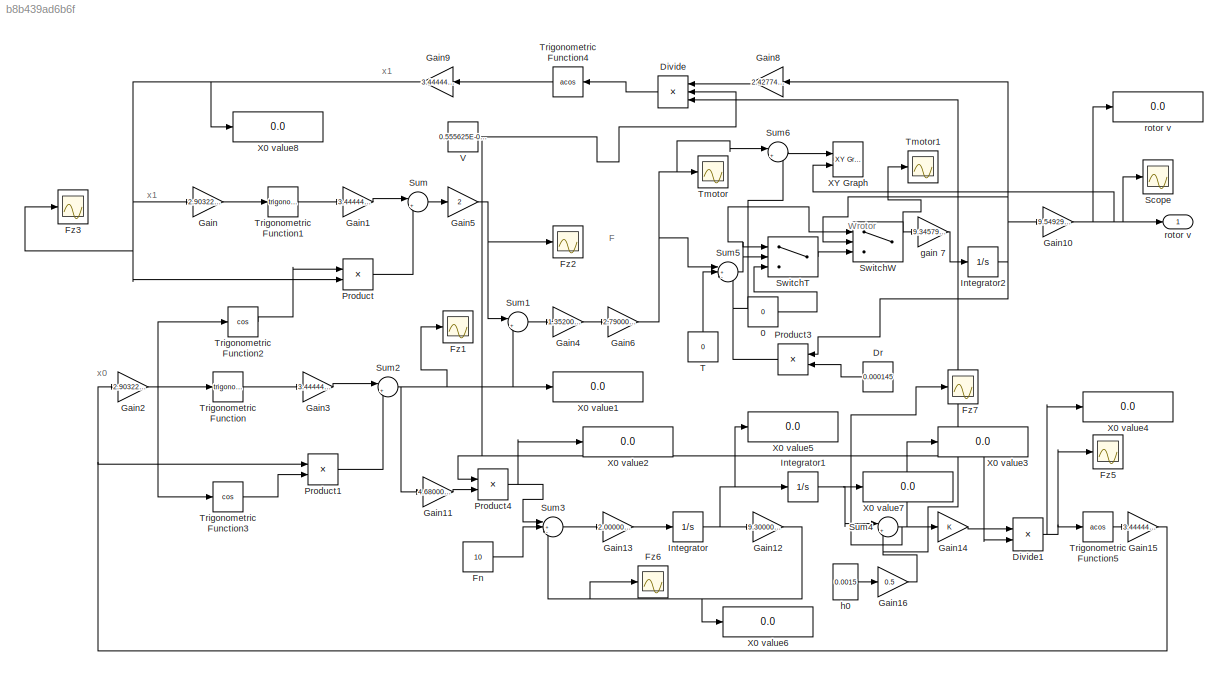
MODEL slx_b8b439ad6b6f
KIND model
BLOCK [Display]  X0 value1
  Decimation = 1
  Lockdown = off
  Ports = [1]
BLOCK [Display]  X0 value2
  Decimation = 1
  Lockdown = off
  Ports = [1]
BLOCK [Display]  X0 value3
  Decimation = 1
  Lockdown = off
  Ports = [1]
BLOCK [Display]  X0 value4
  Decimation = 1
  Lockdown = off
  Ports = [1]
BLOCK [Display]  X0 value5
  Decimation = 1
  Lockdown = off
  Ports = [1]
BLOCK [Display]  X0 value6
  Decimation = 1
  Lockdown = off
  Ports = [1]
BLOCK [Display]  X0 value7
  Decimation = 1
  Lockdown = off
  Ports = [1]
BLOCK [Display]  X0 value8
  Decimation = 1
  Lockdown = off
  Ports = [1]
BLOCK [Constant] 0
  Value = 0
BLOCK [Product] Divide
  InputSameDT = off
  Inputs = *//
  OutDataTypeStr = Inherit: Inherit via internal rule
  Ports = [3, 1]
  RndMeth = Floor
  SaturateOnIntegerOverflow = off
BLOCK [Product] Divide1
  InputSameDT = off
  Inputs = */
  OutDataTypeStr = Inherit: Inherit via internal rule
  Ports = [2, 1]
  RndMeth = Floor
  SaturateOnIntegerOverflow = off
BLOCK [Constant] Dr
  Value = 0.000145
BLOCK [Constant] Fn
  Value = 10
BLOCK [Scope] Fz1
  DataFormat = StructureWithTime
  Floating = off
  MaxDataPoints = 50000
  NumInputPorts = 1
  Ports = [1]
  SampleTime = 0
  SaveName = ScopeData5
  ShowLegends = off
  TimeRange = 0.0025
  YMax = 0.00316673
  YMin = 0.00286513
  ZoomMode = xonly
BLOCK [Scope] Fz2
  DataFormat = StructureWithTime
  Floating = off
  MaxDataPoints = 50000
  NumInputPorts = 1
  Ports = [1]
  SampleTime = 0
  SaveName = ScopeData6
  ShowLegends = off
  TimeRange = 0.0025
  YMax = 584.235
  YMin = 528.593
  ZoomMode = xonly
BLOCK [Scope] Fz3
  DataFormat = StructureWithTime
  Floating = off
  MaxDataPoints = 50000
  NumInputPorts = 1
  Ports = [1]
  SampleTime = 0
  SaveName = ScopeData7
  ShowLegends = off
  TimeRange = 0.0025
  YMax = 0.00037921
  YMin = 0.000379204
  ZoomMode = xonly
BLOCK [Scope] Fz5
  DataFormat = StructureWithTime
  Floating = off
  MaxDataPoints = 50000
  NumInputPorts = 1
  Ports = [1]
  SampleTime = 0
  ShowLegends = off
  TimeRange = 0.0025
  YMax = -1359
  YMin = -1361.75
  ZoomMode = xonly
BLOCK [Scope] Fz6
  DataFormat = StructureWithTime
  Floating = off
  MaxDataPoints = 50000
  NumInputPorts = 1
  Ports = [1]
  SampleTime = 0
  SaveName = ScopeData2
  ShowLegends = off
  TimeRange = 0.0025
  YMax = 18.092
  YMin = 16.369
  ZoomMode = yonly
BLOCK [Scope] Fz7
  DataFormat = StructureWithTime
  Floating = off
  MaxDataPoints = 50000
  NumInputPorts = 1
  Ports = [1]
  SampleTime = 0
  SaveName = ScopeData1
  ShowLegends = off
  TimeRange = 0.0025
  YMax = 0.00109956
  YMin = 0.00099484
  ZoomMode = yonly
BLOCK [Gain] Gain
  Gain = 2.9032258065E+03
  OutDataTypeStr = Inherit: Inherit via internal rule
  ParamDataTypeStr = Inherit: Inherit via internal rule
  SaturateOnIntegerOverflow = off
BLOCK [Gain] Gain1
  Gain = 3.4444444444E-04
  OutDataTypeStr = Inherit: Inherit via internal rule
  ParamDataTypeStr = Inherit: Inherit via internal rule
  SaturateOnIntegerOverflow = off
BLOCK [Gain] Gain10
  Gain = 9.5492967484E+00
  OutDataTypeStr = Inherit: Inherit via internal rule
  ParamDataTypeStr = Inherit: Inherit via internal rule
  SaturateOnIntegerOverflow = off
BLOCK [Gain] Gain11
  Gain = 4.6800000000E+10
  OutDataTypeStr = Inherit: Inherit via internal rule
  ParamDataTypeStr = Inherit: Inherit via internal rule
  SaturateOnIntegerOverflow = off
BLOCK [Gain] Gain12
  Gain = 9.3000000000E+03
  OutDataTypeStr = Inherit: Inherit via internal rule
  ParamDataTypeStr = Inherit: Inherit via internal rule
  SaturateOnIntegerOverflow = off
BLOCK [Gain] Gain13
  Gain = 2.0000000000E+03
  OutDataTypeStr = Inherit: Inherit via internal rule
  ParamDataTypeStr = Inherit: Inherit via internal rule
  SaturateOnIntegerOverflow = off
BLOCK [Gain] Gain14
  OutDataTypeStr = Inherit: Inherit via internal rule
  ParamDataTypeStr = Inherit: Inherit via internal rule
  SaturateOnIntegerOverflow = off
BLOCK [Gain] Gain15
  Gain = 3.4444444444E-04
  OutDataTypeStr = Inherit: Inherit via internal rule
  ParamDataTypeStr = Inherit: Inherit via internal rule
  SaturateOnIntegerOverflow = off
BLOCK [Gain] Gain16
  Gain = 0.5
  OutDataTypeStr = Inherit: Inherit via internal rule
  ParamDataTypeStr = Inherit: Inherit via internal rule
  SaturateOnIntegerOverflow = off
BLOCK [Gain] Gain2
  Gain = 2.9032258065E+03
  OutDataTypeStr = Inherit: Inherit via internal rule
  ParamDataTypeStr = Inherit: Inherit via internal rule
  SaturateOnIntegerOverflow = off
BLOCK [Gain] Gain3
  Gain = 3.4444444444E-04
  OutDataTypeStr = Inherit: Inherit via internal rule
  ParamDataTypeStr = Inherit: Inherit via internal rule
  SaturateOnIntegerOverflow = off
BLOCK [Gain] Gain4
  Gain = 1.3520000000E+03
  OutDataTypeStr = Inherit: Inherit via internal rule
  ParamDataTypeStr = Inherit: Inherit via internal rule
  SaturateOnIntegerOverflow = off
BLOCK [Gain] Gain5
  Gain = 2
  OutDataTypeStr = Inherit: Inherit via internal rule
  ParamDataTypeStr = Inherit: Inherit via internal rule
  SaturateOnIntegerOverflow = off
BLOCK [Gain] Gain6
  Gain = 2.7900000000E-02
  OutDataTypeStr = Inherit: Inherit via internal rule
  ParamDataTypeStr = Inherit: Inherit via internal rule
  SaturateOnIntegerOverflow = off
BLOCK [Gain] Gain8
  Gain = 2.4277444908E-12
  OutDataTypeStr = Inherit: Inherit via internal rule
  ParamDataTypeStr = Inherit: Inherit via internal rule
  SaturateOnIntegerOverflow = off
BLOCK [Gain] Gain9
  Gain = 3.4444444444E-04
  OutDataTypeStr = Inherit: Inherit via internal rule
  ParamDataTypeStr = Inherit: Inherit via internal rule
  SaturateOnIntegerOverflow = off
BLOCK [Integrator] Integrator
  Ports = [1, 1]
BLOCK [Integrator] Integrator1
  InitialCondition = 0.00075
  Ports = [1, 1]
BLOCK [Integrator] Integrator2
  Ports = [1, 1]
BLOCK [Product] Product
  InputSameDT = off
  OutDataTypeStr = Inherit: Inherit via internal rule
  Ports = [2, 1]
  SaturateOnIntegerOverflow = off
BLOCK [Product] Product1
  InputSameDT = off
  OutDataTypeStr = Inherit: Inherit via internal rule
  Ports = [2, 1]
  SaturateOnIntegerOverflow = off
BLOCK [Product] Product3
  InputSameDT = off
  OutDataTypeStr = Inherit: Inherit via internal rule
  Ports = [2, 1]
  SaturateOnIntegerOverflow = off
BLOCK [Product] Product4
  InputSameDT = off
  OutDataTypeStr = Inherit: Inherit via internal rule
  Ports = [2, 1]
  SaturateOnIntegerOverflow = off
BLOCK [Scope] Scope
  Floating = off
  LimitDataPoints = off
  MaxDataPoints = 20000
  NumInputPorts = 1
  Ports = [1]
  SampleTime = 0
  SaveName = WD4
  SaveToWorkspace = on
  ShowLegends = off
  TimeRange = 0.0025
  YMax = 729.75
  YMin = 724
  ZoomMode = xonly
BLOCK [Sum] Sum
  IconShape = round
  InputSameDT = off
  Inputs = |+-
  OutDataTypeStr = Inherit: Inherit via internal rule
  Ports = [2, 1]
  SaturateOnIntegerOverflow = off
BLOCK [Sum] Sum1
  IconShape = round
  InputSameDT = off
  Inputs = |+-
  OutDataTypeStr = Inherit: Inherit via internal rule
  Ports = [2, 1]
  SaturateOnIntegerOverflow = off
BLOCK [Sum] Sum2
  IconShape = round
  InputSameDT = off
  Inputs = |+-
  OutDataTypeStr = Inherit: Inherit via internal rule
  Ports = [2, 1]
  SaturateOnIntegerOverflow = off
BLOCK [Sum] Sum3
  IconShape = round
  InputSameDT = off
  Inputs = |+--
  OutDataTypeStr = Inherit: Inherit via internal rule
  Ports = [3, 1]
  SaturateOnIntegerOverflow = off
BLOCK [Sum] Sum4
  IconShape = round
  InputSameDT = off
  Inputs = |+-
  OutDataTypeStr = Inherit: Inherit via internal rule
  Ports = [2, 1]
  SaturateOnIntegerOverflow = off
BLOCK [Sum] Sum5
  IconShape = round
  InputSameDT = off
  Inputs = |+--
  OutDataTypeStr = Inherit: Inherit via internal rule
  Ports = [3, 1]
  SaturateOnIntegerOverflow = off
BLOCK [Sum] Sum6
  IconShape = round
  InputSameDT = off
  Inputs = |+-
  OutDataTypeStr = Inherit: Inherit via internal rule
  Ports = [2, 1]
  SaturateOnIntegerOverflow = off
BLOCK [Switch] SwitchT
  Criteria = u2 > Threshold
  InputSameDT = off
  SaturateOnIntegerOverflow = off
  Threshold = 0.014
BLOCK [Switch] SwitchW
  Criteria = u2 ~= 0
  InputSameDT = off
  SaturateOnIntegerOverflow = off
BLOCK [Constant] T
  Value = 0
BLOCK [Scope] Tmotor
  Floating = off
  LimitDataPoints = off
  MaxDataPoints = 20000
  NumInputPorts = 1
  Ports = [1]
  SampleTime = 0
  SaveName = TD4
  SaveToWorkspace = on
  ShowLegends = off
  TimeRange = 0.0025
  YMax = 0.0144378
  YMin = 0.0144378
  ZoomMode = yonly
BLOCK [Scope] Tmotor1
  Floating = off
  LimitDataPoints = off
  MaxDataPoints = 20000
  NumInputPorts = 1
  Ports = [1]
  SampleTime = 0
  SaveName = ToutD4
  SaveToWorkspace = on
  ShowLegends = off
  TimeRange = 0.0025
  YMax = 0.01169
  YMin = 0.01154
  ZoomMode = yonly
BLOCK [Trigonometry] Trigonometric Function
  Ports = [1, 1]
BLOCK [Trigonometry] Trigonometric Function1
  Ports = [1, 1]
BLOCK [Trigonometry] Trigonometric Function2
  Operator = cos
  Ports = [1, 1]
BLOCK [Trigonometry] Trigonometric Function3
  Operator = cos
  Ports = [1, 1]
BLOCK [Trigonometry] Trigonometric Function4
  Operator = acos
  Ports = [1, 1]
BLOCK [Trigonometry] Trigonometric Function5
  Operator = acos
  Ports = [1, 1]
BLOCK [Constant] V
  Value = 0.555625E-06
BLOCK [Reference] XY Graph  REF=simulink/Sinks/XY Graph
  Ports = [2]
  SourceBlock = simulink/Sinks/XY Graph
  SourceType = XY scope.
  st = -1
  xmax = 0.03
  xmin = 0
  ymax = 1000
  ymin = 0
BLOCK [Gain] gain 7
  Gain = 9.3457943925E+06
  OutDataTypeStr = Inherit: Inherit via internal rule
  ParamDataTypeStr = Inherit: Inherit via internal rule
  SaturateOnIntegerOverflow = off
BLOCK [Constant] h0
  Value = 0.0015
BLOCK [Display] rotor v
  Decimation = 1
  Lockdown = off
  Ports = [1]
BLOCK [Outport] rotor v 
  IconDisplay = Port number
ANNOTATION (root): F
ANNOTATION (root): Wrotor
ANNOTATION (root): x0
ANNOTATION (root): x1
LINE 0:1 -> SwitchT:3
NET Divide1:1 ->  X0 value4:1, Fz5:1, Trigonometric Function5:1
LINE Divide:1 -> Trigonometric Function4:1
LINE Dr:1 -> Product3:2
LINE Fn:1 -> Sum3:2
NET Gain10:1 -> Scope:1, XY Graph:2, rotor v :1, rotor v:1
LINE Gain11:1 -> Product4:2
NET Gain12:1 ->  X0 value6:1, Fz6:1, Sum3:3
LINE Gain13:1 -> Integrator:1
LINE Gain14:1 -> Divide1:1
NET Gain15:1 -> Gain2:1, Product1:1
NET Gain16:1 -> Divide:3, Sum4:2
LINE Gain1:1 -> Sum:1
NET Gain2:1 -> Trigonometric Function2:1, Trigonometric Function3:1, Trigonometric Function:1
LINE Gain3:1 -> Sum2:1
LINE Gain4:1 -> Gain6:1
NET Gain5:1 -> Fz2:1, Sum1:1
NET Gain6:1 -> Sum5:1, Sum6:1, Tmotor:1
LINE Gain8:1 -> Divide:1
NET Gain9:1 ->  X0 value8:1, Fz3:1, Gain:1, Product:2
LINE Gain:1 -> Trigonometric Function1:1
NET Integrator1:1 ->  X0 value7:1, Sum4:1
NET Integrator2:1 -> Gain10:1, Gain8:1, Product3:1, SwitchW:2
NET Integrator:1 ->  X0 value5:1, Gain12:1, Integrator1:1
LINE Product1:1 -> Sum2:2
NET Product3:1 -> Sum5:3, Sum6:2
NET Product4:1 ->  X0 value2:1, Sum3:1
LINE Product:1 -> Sum:2
LINE Sum1:1 -> Gain4:1
NET Sum2:1 ->  X0 value1:1, Fz1:1, Gain11:1, Sum1:2
LINE Sum3:1 -> Gain13:1
NET Sum4:1 ->  X0 value3:1, Fz7:1, Gain14:1
NET Sum5:1 -> SwitchT:1, SwitchT:2, SwitchW:1
LINE Sum6:1 -> XY Graph:1
LINE Sum:1 -> Gain5:1
LINE SwitchT:1 -> SwitchW:3
NET SwitchW:1 -> Tmotor1:1, gain 7:1
LINE T:1 -> Sum5:2
LINE Trigonometric Function1:1 -> Gain1:1
LINE Trigonometric Function2:1 -> Product:1
LINE Trigonometric Function3:1 -> Product1:2
LINE Trigonometric Function4:1 -> Gain9:1
LINE Trigonometric Function5:1 -> Gain15:1
LINE Trigonometric Function:1 -> Gain3:1
NET V:1 -> Divide1:2, Divide:2, Product4:1
LINE gain 7:1 -> Integrator2:1
LINE h0:1 -> Gain16:1
note: NET lines group one-source signal fan-out (src -> all destinations, sorted); 1:1 wires keep LINE
